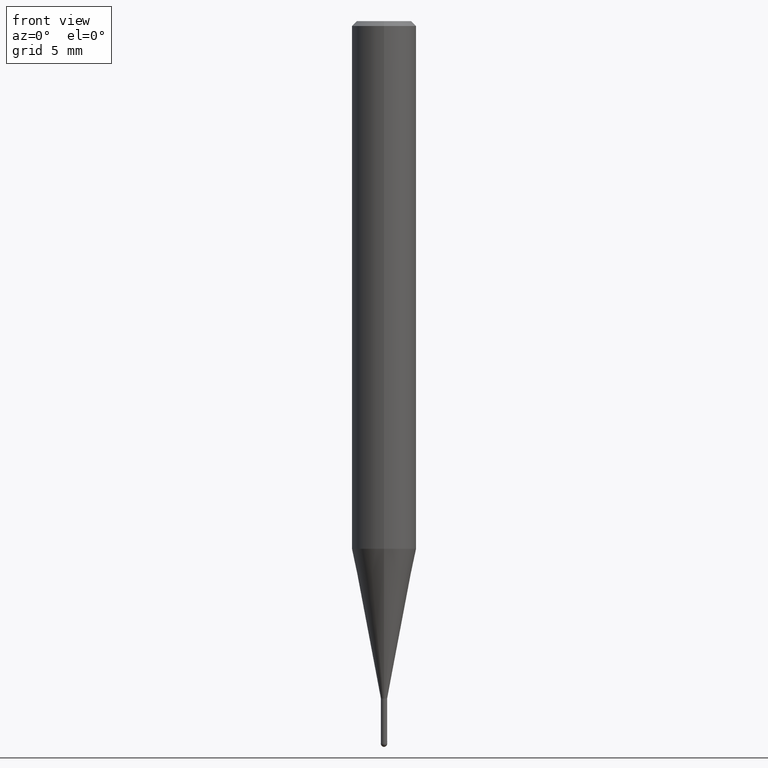
[diagram: clean part render]
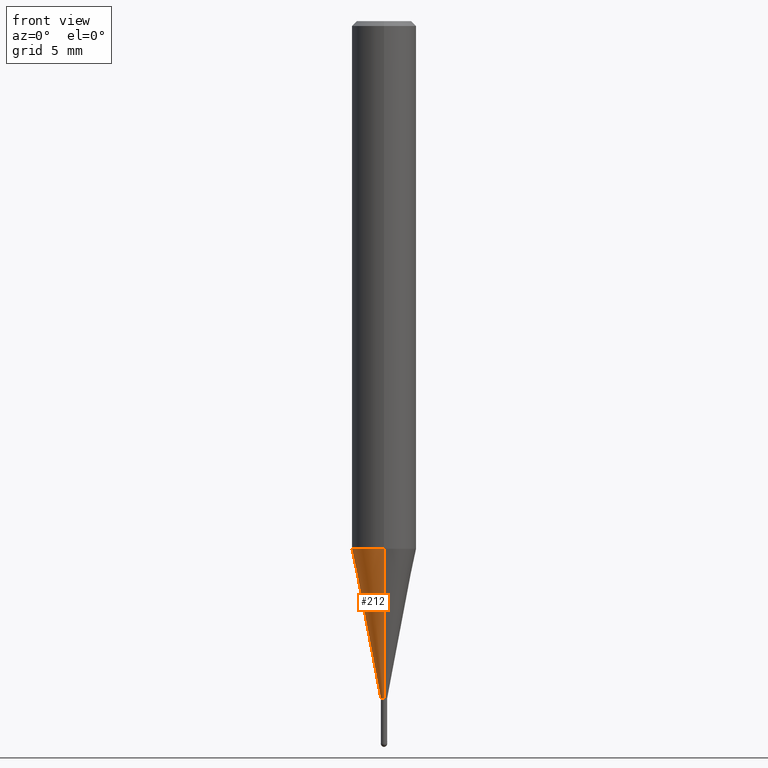
[diagram: same view with one face highlighted and labeled with its STEP entity id]
A machine part, front view. The second image highlights one B-rep face of the part: STEP entity #212.
In plain terms, the highlighted conical surface has half-angle 11 deg.
Its self-contained STEP definition (entity closure, byte-faithful):
#100=VERTEX_POINT('',#242);
#104=VERTEX_POINT('',#247);
#130=VERTEX_POINT('',#274);
#156=EDGE_CURVE('',#130,#180,#305,.T.);
#160=EDGE_CURVE('',#100,#104,#309,.T.);
#180=VERTEX_POINT('',#333);
#202=EDGE_CURVE('',#100,#180,#359,.T.);
#212=ADVANCED_FACE('',(#369),#370,.T.);
#214=EDGE_CURVE('',#104,#130,#372,.T.);
#242=CARTESIAN_POINT('',(2.38737008677672E-017,-0.19495,-42.0));
#247=CARTESIAN_POINT('',(2.44915147732706E-016,-1.99995,-32.714));
#274=CARTESIAN_POINT('',(0.0,1.99995,-32.714));
#305=LINE('',#473,#474);
#309=LINE('',#479,#480);
#333=CARTESIAN_POINT('',(0.0,0.19495,-42.0));
#359=CIRCLE('',#539,0.19495);
#369=FACE_OUTER_BOUND('',#553,.T.);
#370=CONICAL_SURFACE('',#554,1.09745,0.191984604054908);
#372=CIRCLE('',#557,1.99995);
#473=CARTESIAN_POINT('',(-1.34394424300237E-016,1.09745,-37.357));
#474=VECTOR('',#642,1.0);
#479=CARTESIAN_POINT('',(1.34394424300237E-016,-1.09745,-37.357));
#480=VECTOR('',#643,1.0);
#539=AXIS2_PLACEMENT_3D('',#714,#715,#716);
#553=EDGE_LOOP('',(#730,#731,#732,#733));
#554=AXIS2_PLACEMENT_3D('',#734,#735,#736);
#557=AXIS2_PLACEMENT_3D('',#737,#738,#739);
#642=DIRECTION('',(2.33663968307108E-017,-0.190807411359389,-0.981627491348082));
#643=DIRECTION('',(2.33663968307108E-017,-0.190807411359389,0.981627491348082));
#714=CARTESIAN_POINT('',(0.0,0.0,-42.0));
#715=DIRECTION('',(0.0,0.0,-1.0));
#716=DIRECTION('',(0.0,1.0,0.0));
#730=ORIENTED_EDGE('',*,*,#156,.T.);
#731=ORIENTED_EDGE('',*,*,#202,.F.);
#732=ORIENTED_EDGE('',*,*,#160,.T.);
#733=ORIENTED_EDGE('',*,*,#214,.T.);
#734=CARTESIAN_POINT('',(0.0,0.0,-37.357));
#735=DIRECTION('',(-0.0,-0.0,1.0));
#736=DIRECTION('',(0.0,1.0,0.0));
#737=CARTESIAN_POINT('',(0.0,0.0,-32.714));
#738=DIRECTION('',(0.0,0.0,-1.0));
#739=DIRECTION('',(0.0,1.0,0.0));